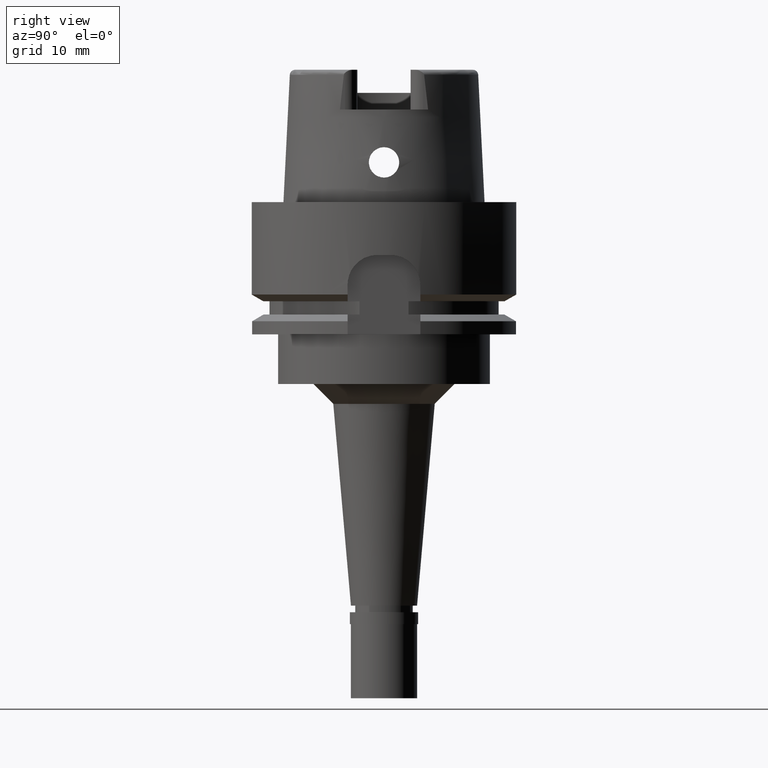
[diagram: clean part render]
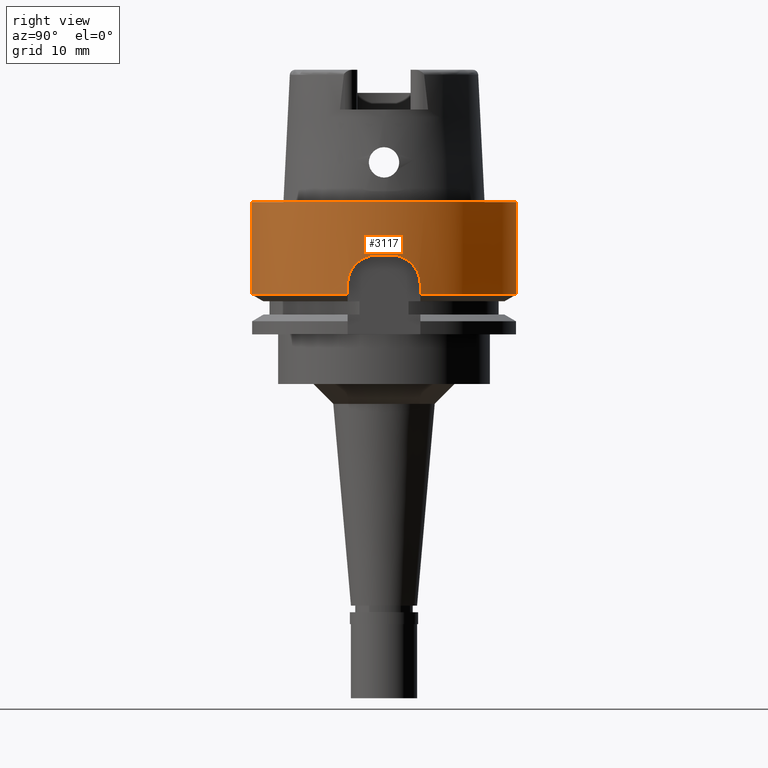
[diagram: same view with one face highlighted and labeled with its STEP entity id]
A machine part, right view. The second image highlights one B-rep face of the part: STEP entity #3117.
In plain terms, the highlighted cylindrical surface (partial cylindrical patch) has radius 20 mm, axis along (0, 0, -1).
Its self-contained STEP definition (entity closure, byte-faithful):
#55 = CARTESIAN_POINT ( 'NONE',  ( 19.55946601776717486, -4.174647431067589842, -9.310700270499427944 ) ) ;
#63 = EDGE_CURVE ( 'NONE', #1830, #4977, #2137, .T. ) ;
#95 = CARTESIAN_POINT ( 'NONE',  ( 0.0000000000000000000, 1.047199923064999921E-14, -13.97927405783999966 ) ) ;
#266 = CARTESIAN_POINT ( 'NONE',  ( 19.50142593039273109, 4.439542253083269330, -9.597059118783027643 ) ) ;
#269 = CARTESIAN_POINT ( 'NONE',  ( 19.81625301537057027, -2.704420886944092661, -8.335265361555848074 ) ) ;
#294 = CARTESIAN_POINT ( 'NONE',  ( 19.70286275662716236, -3.434780831020409320, -8.715480651281778179 ) ) ;
#314 = CARTESIAN_POINT ( 'NONE',  ( 19.52053442686839446, 4.353765221782037287, -9.499310411786693109 ) ) ;
#332 = ORIENTED_EDGE ( 'NONE', *, *, #885, .F. ) ;
#369 = CIRCLE ( 'NONE', #3373, 20.00000000000000000 ) ;
#371 = CARTESIAN_POINT ( 'NONE',  ( 19.29601910180648616, 5.260598097711366883, -11.04834435504875501 ) ) ;
#372 = CARTESIAN_POINT ( 'NONE',  ( 19.97498435543999662, -1.000000000000000000, -8.000000000000000000 ) ) ;
#373 = EDGE_LOOP ( 'NONE', ( #3908, #4962, #478, #2724, #829, #1973, #4865, #4225, #2936, #332 ) ) ;
#406 = EDGE_CURVE ( 'NONE', #1966, #4977, #2077, .T. ) ;
#425 = CARTESIAN_POINT ( 'NONE',  ( 19.22888452303000051, -5.500000000000000000, -12.50000000000000000 ) ) ;
#478 = ORIENTED_EDGE ( 'NONE', *, *, #4879, .F. ) ;
#574 = DIRECTION ( 'NONE',  ( 0.0000000000000000000, -1.000000000000000000, 0.0000000000000000000 ) ) ;
#692 = CARTESIAN_POINT ( 'NONE',  ( 19.79266068958626690, 2.872814982025818864, -8.408059249521329548 ) ) ;
#719 = CARTESIAN_POINT ( 'NONE',  ( 0.0000000000000000000, 20.00000000000000000, -13.97927405783999966 ) ) ;
#727 = CARTESIAN_POINT ( 'NONE',  ( 19.83222837323851806, -2.584740915281582119, -8.287963799882753335 ) ) ;
#746 = CARTESIAN_POINT ( 'NONE',  ( 19.32032418046354749, 5.169984398368204559, -10.80847615301117948 ) ) ;
#770 = CARTESIAN_POINT ( 'NONE',  ( 19.34380695557921115, 5.081862356183860285, -10.59253311257741359 ) ) ;
#789 = DIRECTION ( 'NONE',  ( -9.330906613146392706E-08, -3.262214250011141658E-07, -0.9999999999999423794 ) ) ;
#790 = CYLINDRICAL_SURFACE ( 'NONE', #2190, 20.00000000000000000 ) ;
#803 = CARTESIAN_POINT ( 'NONE',  ( 19.37871462058611272, -4.949342529047944694, -10.33909566511290734 ) ) ;
#804 = VERTEX_POINT ( 'NONE', #4328 ) ;
#829 = ORIENTED_EDGE ( 'NONE', *, *, #4588, .F. ) ;
#856 = CARTESIAN_POINT ( 'NONE',  ( 19.34832780428960675, -5.064939329112198685, -10.56870436403544034 ) ) ;
#885 = EDGE_CURVE ( 'NONE', #4275, #1830, #1179, .T. ) ;
#890 = CARTESIAN_POINT ( 'NONE',  ( 19.32817306023278547, -5.140566403617407687, -10.73759747573269330 ) ) ;
#991 = DIRECTION ( 'NONE',  ( 0.0000000000000000000, 0.0000000000000000000, 1.000000000000000000 ) ) ;
#992 = CARTESIAN_POINT ( 'NONE',  ( 19.32359924222965830, -5.157733724682836751, -10.77858382672700976 ) ) ;
#1043 = CARTESIAN_POINT ( 'NONE',  ( 0.0000000000000000000, -20.00000000000000000, -4.973799150320999175E-14 ) ) ;
#1126 = LINE ( 'NONE', #5173, #2505 ) ;
#1129 = CARTESIAN_POINT ( 'NONE',  ( 19.97498435543999662, 1.000000000000000000, -8.000000000000000000 ) ) ;
#1133 = CARTESIAN_POINT ( 'NONE',  ( 19.69218632689483428, -3.495406580191935397, -8.755277578796775373 ) ) ;
#1158 = CARTESIAN_POINT ( 'NONE',  ( 19.57622255506661801, 4.096717591862338637, -9.231638431951099122 ) ) ;
#1162 = CARTESIAN_POINT ( 'NONE',  ( 19.64434316029579719, -3.753364497397666533, -8.939880111753758740 ) ) ;
#1179 = B_SPLINE_CURVE_WITH_KNOTS ( 'NONE', 3,
 ( #3931, #2819, #1587, #5213, #1613, #2015, #2311, #727, #3167, #3542, #3645, #269, #1907, #1556, #5159, #1506, #4755, #3960, #294, #3567, #5184, #4806, #1532, #4777, #1133, #2770, #4381, #1162, #2798, #4961, #1639, #2123, #3747, #4909, #2626, #2922, #55, #2894, #2443, #3275, #4509, #803, #2464, #856, #4537, #2069, #890, #3025, #4881, #3668, #992, #2523, #1262, #425 ),
 .UNSPECIFIED., .F., .F.,
 ( 4, 2, 2, 1, 1, 1, 2, 2, 2, 2, 1, 1, 1, 1, 1, 2, 2, 2, 2, 2, 1, 1, 1, 2, 2, 2, 2, 2, 1, 1, 1, 2, 2, 4 ),
 ( 0.0000000000000000000, 0.1250000000006271095, 0.1875000000009407197, 0.2187500000010976220, 0.2343750000011760037, 0.2421875000012152501, 0.2460937500012349566, 0.2500000000012546630, 0.3125000000015718538, 0.3437500000017303936, 0.3593750000018097746, 0.3671875000018494650, 0.3710937500018691160, 0.3730468750018789414, 0.3740234375018838264, 0.3745117187518861024, 0.3750000000018883783, 0.4375000000017047475, 0.4687500000016132096, 0.4843750000015673574, 0.4921875000015444312, 0.4960937500015331625, 0.4980468750015275003, 0.4990234375015247803, 0.5000000000015220047, 0.6250000000011353141, 0.6875000000009421353, 0.7187500000008451018, 0.7343750000007961409, 0.7421875000007718270, 0.7460937500007596146, 0.7480468750007539525, 0.7500000000007481793, 1.000000000000000000 ),
 .UNSPECIFIED. ) ;
#1183 = CARTESIAN_POINT ( 'NONE',  ( 19.31936919709609413, 5.173565336899839551, -10.81733093384521283 ) ) ;
#1202 = FACE_OUTER_BOUND ( 'NONE', #373, .T. ) ;
#1262 = CARTESIAN_POINT ( 'NONE',  ( 19.22888452303000051, -5.499999999999998224, -11.94434606110780450 ) ) ;
#1384 = DIRECTION ( 'NONE',  ( 0.0000000000000000000, -1.000000000000000000, 0.0000000000000000000 ) ) ;
#1506 = CARTESIAN_POINT ( 'NONE',  ( 19.73895532437388667, -3.221284057041142734, -8.585652795198658538 ) ) ;
#1532 = CARTESIAN_POINT ( 'NONE',  ( 19.69294124567169746, -3.491151711780235978, -8.752445483751202460 ) ) ;
#1538 = DIRECTION ( 'NONE',  ( 0.0000000000000000000, 0.0000000000000000000, -1.000000000000000000 ) ) ;
#1552 = CARTESIAN_POINT ( 'NONE',  ( 19.26930964573412197, 5.358382645663338550, -11.37007128475910100 ) ) ;
#1556 = CARTESIAN_POINT ( 'NONE',  ( 19.78050042100976214, -2.957517143741742682, -8.445362508894744380 ) ) ;
#1558 = CARTESIAN_POINT ( 'NONE',  ( 0.0000000000000000000, 20.00000000000000000, -3.079018521626999621E-14 ) ) ;
#1559 = EDGE_CURVE ( 'NONE', #1871, #3012, #369, .T. ) ;
#1587 = CARTESIAN_POINT ( 'NONE',  ( 19.94128767625850074, -1.553696544724710193, -8.024613320675822337 ) ) ;
#1613 = CARTESIAN_POINT ( 'NONE',  ( 19.88640778754135852, -2.130037156350732985, -8.141558214531912085 ) ) ;
#1630 = LINE ( 'NONE', #2007, #4252 ) ;
#1639 = CARTESIAN_POINT ( 'NONE',  ( 19.59755329167247950, -3.991492605872019261, -9.137735594695872265 ) ) ;
#1727 = VECTOR ( 'NONE', #789, 1000.000000000000114 ) ;
#1735 = CARTESIAN_POINT ( 'NONE',  ( 19.22888452303000051, -5.499999999998999911, -13.97927405783999966 ) ) ;
#1830 = VERTEX_POINT ( 'NONE', #2614 ) ;
#1871 = VERTEX_POINT ( 'NONE', #1558 ) ;
#1907 = CARTESIAN_POINT ( 'NONE',  ( 19.79891483246287365, -2.831338609660753569, -8.387472549055360105 ) ) ;
#1933 = CARTESIAN_POINT ( 'NONE',  ( 19.54706758414558365, 4.232361528609957624, -9.369190671430152051 ) ) ;
#1957 = CARTESIAN_POINT ( 'NONE',  ( 19.28663469832159549, 5.295105913703959999, -11.15552064465399340 ) ) ;
#1966 = VERTEX_POINT ( 'NONE', #3621 ) ;
#1973 = ORIENTED_EDGE ( 'NONE', *, *, #1559, .T. ) ;
#1985 = CARTESIAN_POINT ( 'NONE',  ( 19.31465255680291904, 5.191230033022964818, -10.86163901159076772 ) ) ;
#2007 = CARTESIAN_POINT ( 'NONE',  ( 19.22888455231999671, 5.499999897597000142, -13.97927491597999961 ) ) ;
#2010 = CARTESIAN_POINT ( 'NONE',  ( 19.77784088565055853, 2.975054965791005035, -8.455373366385931178 ) ) ;
#2015 = CARTESIAN_POINT ( 'NONE',  ( 19.86155045042389489, -2.348188506590724423, -8.206034764496976663 ) ) ;
#2037 = CARTESIAN_POINT ( 'NONE',  ( 19.22888452303000051, 5.500000000000000000, -12.50000000000000000 ) ) ;
#2047 = CARTESIAN_POINT ( 'NONE',  ( 0.0000000000000000000, 1.525481285357999688E-14, -4.973799150320999175E-14 ) ) ;
#2069 = CARTESIAN_POINT ( 'NONE',  ( 19.33346370639365475, -5.120735699995619505, -10.69140906420976300 ) ) ;
#2077 = CIRCLE ( 'NONE', #2586, 20.00000000000000000 ) ;
#2123 = CARTESIAN_POINT ( 'NONE',  ( 19.58348406175287693, -4.060166917196702308, -9.200554451966914016 ) ) ;
#2137 = LINE ( 'NONE', #3760, #1727 ) ;
#2190 = AXIS2_PLACEMENT_3D ( 'NONE', #2432, #4053, #574 ) ;
#2247 = AXIS2_PLACEMENT_3D ( 'NONE', #3296, #4480, #2865 ) ;
#2251 = CARTESIAN_POINT ( 'NONE',  ( 0.0000000000000000000, 1.047199923064999921E-14, -13.97927405783999966 ) ) ;
#2309 = CARTESIAN_POINT ( 'NONE',  ( 19.94747734611184953, 1.549452080895394435, -8.000000000000000000 ) ) ;
#2311 = CARTESIAN_POINT ( 'NONE',  ( 19.84851072774393899, -2.457405216440189388, -8.241312961659874148 ) ) ;
#2385 = CARTESIAN_POINT ( 'NONE',  ( 19.73156136721900111, 3.271312546341104799, -8.612418166238757777 ) ) ;
#2409 = CARTESIAN_POINT ( 'NONE',  ( 19.48919467985870924, 4.493392015102250170, -9.662221682820394619 ) ) ;
#2432 = CARTESIAN_POINT ( 'NONE',  ( 0.0000000000000000000, 1.525481285357999688E-14, 24.56500000000000128 ) ) ;
#2443 = CARTESIAN_POINT ( 'NONE',  ( 19.50243034717146884, -4.441498029884987986, -9.577354834597434419 ) ) ;
#2464 = CARTESIAN_POINT ( 'NONE',  ( 19.35553694553402693, -5.037750810776712385, -10.51234513077794475 ) ) ;
#2482 = DIRECTION ( 'NONE',  ( -1.979970777584989435E-08, 6.922498390785961804E-08, 0.9999999999999973355 ) ) ;
#2505 = VECTOR ( 'NONE', #4321, 1000.000000000000000 ) ;
#2523 = CARTESIAN_POINT ( 'NONE',  ( 19.26029251281642019, -5.395656231037307293, -11.35498875609509284 ) ) ;
#2586 = AXIS2_PLACEMENT_3D ( 'NONE', #2251, #991, #1384 ) ;
#2614 = CARTESIAN_POINT ( 'NONE',  ( 19.22888452303000051, -5.500000000000000000, -12.50000000000000000 ) ) ;
#2626 = CARTESIAN_POINT ( 'NONE',  ( 19.56276028350696450, -4.159176365751750204, -9.295357038149926865 ) ) ;
#2724 = ORIENTED_EDGE ( 'NONE', *, *, #4983, .T. ) ;
#2766 = CARTESIAN_POINT ( 'NONE',  ( 19.22888452303000051, 5.500000000000000000, -12.22465747469364672 ) ) ;
#2770 = CARTESIAN_POINT ( 'NONE',  ( 19.69007030108068790, -3.507325168192505060, -8.763220307204319326 ) ) ;
#2795 = CARTESIAN_POINT ( 'NONE',  ( 19.30823085762336788, 5.215214264579218550, -10.92377104179822211 ) ) ;
#2798 = CARTESIAN_POINT ( 'NONE',  ( 19.63064394763237175, -3.824976937391296072, -8.995569033141055826 ) ) ;
#2815 = CARTESIAN_POINT ( 'NONE',  ( 19.37445306152446634, 4.968718896179900923, -10.35856978558746810 ) ) ;
#2819 = CARTESIAN_POINT ( 'NONE',  ( 19.96139497116242723, -1.271447738301229258, -8.000000000000001776 ) ) ;
#2837 = CARTESIAN_POINT ( 'NONE',  ( 19.45402416960585157, 4.645537953123496600, -9.856678750723689930 ) ) ;
#2865 = DIRECTION ( 'NONE',  ( 0.9987492177719088371, -0.04999999999999998890, 0.0000000000000000000 ) ) ;
#2894 = CARTESIAN_POINT ( 'NONE',  ( 19.55857315053915357, -4.178829359050190817, -9.314870145130013768 ) ) ;
#2918 = LINE ( 'NONE', #4562, #3354 ) ;
#2922 = CARTESIAN_POINT ( 'NONE',  ( 19.56078668876654092, -4.168450488733339121, -9.304543760803174024 ) ) ;
#2936 = ORIENTED_EDGE ( 'NONE', *, *, #63, .F. ) ;
#2986 = AXIS2_PLACEMENT_3D ( 'NONE', #95, #4207, #4232 ) ;
#3012 = VERTEX_POINT ( 'NONE', #1043 ) ;
#3025 = CARTESIAN_POINT ( 'NONE',  ( 19.32561251652135326, -5.150173324776464945, -10.76041730666092811 ) ) ;
#3117 = ADVANCED_FACE ( 'NONE', ( #1202 ), #790, .T. ) ;
#3164 = CARTESIAN_POINT ( 'NONE',  ( 19.59855040313290431, 3.987633760326811050, -9.131633675298168384 ) ) ;
#3167 = CARTESIAN_POINT ( 'NONE',  ( 19.82381985980777017, -2.648343888950674074, -8.312682143098305332 ) ) ;
#3195 = CARTESIAN_POINT ( 'NONE',  ( 19.31794236171047530, 5.178913504022619740, -10.83061647130366012 ) ) ;
#3275 = CARTESIAN_POINT ( 'NONE',  ( 19.45499076636762226, -4.644027424708560225, -9.843214420874701887 ) ) ;
#3296 = CARTESIAN_POINT ( 'NONE',  ( 0.0000000000000000000, 1.525481285357999688E-14, -8.000000000000000000 ) ) ;
#3354 = VECTOR ( 'NONE', #4929, 1000.000000000000000 ) ;
#3373 = AXIS2_PLACEMENT_3D ( 'NONE', #2047, #1538, #3626 ) ;
#3487 = CARTESIAN_POINT ( 'NONE',  ( 19.97498435543999662, 1.000000000000000000, -8.000000000000000000 ) ) ;
#3538 = CARTESIAN_POINT ( 'NONE',  ( 19.32093289487027121, 5.167700803223270967, -10.80286057460748950 ) ) ;
#3542 = CARTESIAN_POINT ( 'NONE',  ( 19.82015892487073927, -2.675583637691682171, -8.323576253928909097 ) ) ;
#3567 = CARTESIAN_POINT ( 'NONE',  ( 19.69754499802385439, -3.465100448351546625, -8.735233290140167028 ) ) ;
#3587 = CARTESIAN_POINT ( 'NONE',  ( 19.25968461651885733, 5.392910415947905989, -11.51336319933396801 ) ) ;
#3604 = VERTEX_POINT ( 'NONE', #3487 ) ;
#3621 = CARTESIAN_POINT ( 'NONE',  ( 0.0000000000000000000, -20.00000000000000000, -13.97927405783999966 ) ) ;
#3626 = DIRECTION ( 'NONE',  ( 0.0000000000000000000, 1.000000000000000000, 0.0000000000000000000 ) ) ;
#3641 = CARTESIAN_POINT ( 'NONE',  ( 19.80702582156760982, 2.771501254341000919, -8.363168820821488936 ) ) ;
#3645 = CARTESIAN_POINT ( 'NONE',  ( 19.81770557128518462, -2.693738785039518024, -8.330906002295053625 ) ) ;
#3668 = CARTESIAN_POINT ( 'NONE',  ( 19.32381787218635338, -5.156912517073622304, -10.77660492449496132 ) ) ;
#3714 = EDGE_CURVE ( 'NONE', #4451, #3604, #3729, .T. ) ;
#3729 = B_SPLINE_CURVE_WITH_KNOTS ( 'NONE', 3,
 ( #3983, #2766, #4828, #3587, #1552, #1957, #371, #2795, #1985, #3195, #1183, #746, #3538, #770, #2815, #4801, #2837, #2409, #266, #314, #4376, #4751, #1933, #5179, #4452, #1158, #3164, #4404, #4033, #4427, #2385, #4774, #2010, #692, #4008, #3641, #5261, #2309, #1129 ),
 .UNSPECIFIED., .F., .F.,
 ( 4, 2, 2, 1, 1, 1, 1, 2, 2, 2, 2, 2, 1, 1, 2, 2, 2, 2, 2, 1, 2, 2, 4 ),
 ( 0.0000000000000000000, 0.1250000000000140166, 0.1875000000000213718, 0.2187500000000249800, 0.2343750000000265621, 0.2421875000000272837, 0.2460937500000277833, 0.2480468750000279776, 0.2500000000000281442, 0.3750000000000233702, 0.4375000000000211497, 0.4687500000000202616, 0.4843750000000195399, 0.4921875000000194289, 0.4960937500000194289, 0.5000000000000194289, 0.5625000000000174305, 0.6250000000000153211, 0.6875000000000132117, 0.7187500000000122125, 0.7343750000000116573, 0.7500000000000109912, 1.000000000000000000 ),
 .UNSPECIFIED. ) ;
#3747 = CARTESIAN_POINT ( 'NONE',  ( 19.57621227051668100, -4.095335981776966783, -9.233376359409128042 ) ) ;
#3760 = CARTESIAN_POINT ( 'NONE',  ( 19.22888452303000051, -5.500000000000000000, -12.50000000000000000 ) ) ;
#3774 = CIRCLE ( 'NONE', #2247, 20.00000000000000355 ) ;
#3789 = EDGE_CURVE ( 'NONE', #3012, #1966, #2918, .T. ) ;
#3908 = ORIENTED_EDGE ( 'NONE', *, *, #3945, .T. ) ;
#3931 = CARTESIAN_POINT ( 'NONE',  ( 19.97498435543999662, -1.000000000000000000, -8.000000000000000000 ) ) ;
#3945 = EDGE_CURVE ( 'NONE', #4275, #3604, #3774, .T. ) ;
#3960 = CARTESIAN_POINT ( 'NONE',  ( 19.71332632635408544, -3.374393332477201746, -8.677022816151543694 ) ) ;
#3983 = CARTESIAN_POINT ( 'NONE',  ( 19.22888452303000051, 5.500000000000000000, -12.50000000000000000 ) ) ;
#4008 = CARTESIAN_POINT ( 'NONE',  ( 19.80244722007547153, 2.804145672546970225, -8.377322053014763625 ) ) ;
#4033 = CARTESIAN_POINT ( 'NONE',  ( 19.66574843538842998, 3.640817669629786923, -8.853413500725553220 ) ) ;
#4053 = DIRECTION ( 'NONE',  ( 0.0000000000000000000, 0.0000000000000000000, -1.000000000000000000 ) ) ;
#4207 = DIRECTION ( 'NONE',  ( 0.0000000000000000000, 0.0000000000000000000, 1.000000000000000000 ) ) ;
#4225 = ORIENTED_EDGE ( 'NONE', *, *, #406, .T. ) ;
#4232 = DIRECTION ( 'NONE',  ( 0.9614442261514726251, 0.2749999999999924727, 0.0000000000000000000 ) ) ;
#4252 = VECTOR ( 'NONE', #2482, 1000.000000000000227 ) ;
#4275 = VERTEX_POINT ( 'NONE', #372 ) ;
#4321 = DIRECTION ( 'NONE',  ( 0.0000000000000000000, -4.574547001069000145E-14, -1.000000000000000000 ) ) ;
#4328 = CARTESIAN_POINT ( 'NONE',  ( 19.22888455231999671, 5.499999897597000142, -13.97927491597999961 ) ) ;
#4376 = CARTESIAN_POINT ( 'NONE',  ( 19.53027908027488735, 4.309626506875561702, -9.450435772416618363 ) ) ;
#4381 = CARTESIAN_POINT ( 'NONE',  ( 19.67785115744198521, -3.575650279269555476, -8.807046664827172577 ) ) ;
#4404 = CARTESIAN_POINT ( 'NONE',  ( 19.64322700995230520, 3.760156515080752548, -8.942840572101511398 ) ) ;
#4427 = CARTESIAN_POINT ( 'NONE',  ( 19.71012153021548841, 3.397762175239445348, -8.689193312183027373 ) ) ;
#4451 = VERTEX_POINT ( 'NONE', #2037 ) ;
#4452 = CARTESIAN_POINT ( 'NONE',  ( 19.55251032529857014, 4.207111571716469101, -9.343337093207152222 ) ) ;
#4480 = DIRECTION ( 'NONE',  ( 0.0000000000000000000, 0.0000000000000000000, 1.000000000000000000 ) ) ;
#4509 = CARTESIAN_POINT ( 'NONE',  ( 19.39623340571264265, -4.881279890942718858, -10.21799917188167051 ) ) ;
#4537 = CARTESIAN_POINT ( 'NONE',  ( 19.33828921808240153, -5.102649160092395775, -10.65089791658008345 ) ) ;
#4562 = CARTESIAN_POINT ( 'NONE',  ( 0.0000000000000000000, -20.00000000000000000, -3.079018521626999621E-14 ) ) ;
#4588 = EDGE_CURVE ( 'NONE', #1871, #4703, #1126, .T. ) ;
#4703 = VERTEX_POINT ( 'NONE', #719 ) ;
#4751 = CARTESIAN_POINT ( 'NONE',  ( 19.54198105162760513, 4.255882633077031407, -9.393536465144112668 ) ) ;
#4755 = CARTESIAN_POINT ( 'NONE',  ( 19.72200033329762192, -3.323108481413076465, -8.645817699039534787 ) ) ;
#4774 = CARTESIAN_POINT ( 'NONE',  ( 19.76260105710921877, 3.074924970397655777, -8.506226763252636047 ) ) ;
#4777 = CARTESIAN_POINT ( 'NONE',  ( 19.69255577653849443, -3.493325089397369521, -8.753891125188173916 ) ) ;
#4801 = CARTESIAN_POINT ( 'NONE',  ( 19.43260815123626628, 4.734422932988243460, -9.984905843194917807 ) ) ;
#4806 = CARTESIAN_POINT ( 'NONE',  ( 19.69351906556017084, -3.487892151937508789, -8.750279404317454990 ) ) ;
#4828 = CARTESIAN_POINT ( 'NONE',  ( 19.23658454640221294, 5.474660854085302120, -11.94154979021848106 ) ) ;
#4865 = ORIENTED_EDGE ( 'NONE', *, *, #3789, .T. ) ;
#4879 = EDGE_CURVE ( 'NONE', #804, #4451, #1630, .T. ) ;
#4881 = CARTESIAN_POINT ( 'NONE',  ( 19.32453330765266841, -5.154225458029919160, -10.77013783649260681 ) ) ;
#4909 = CARTESIAN_POINT ( 'NONE',  ( 19.56731345559081348, -4.137688151816436566, -9.274255797007146640 ) ) ;
#4929 = DIRECTION ( 'NONE',  ( 0.0000000000000000000, 4.549132851063000272E-14, -1.000000000000000000 ) ) ;
#4961 = CARTESIAN_POINT ( 'NONE',  ( 19.60630030821519654, -3.947932665987302858, -9.099621231190102577 ) ) ;
#4962 = ORIENTED_EDGE ( 'NONE', *, *, #3714, .F. ) ;
#4977 = VERTEX_POINT ( 'NONE', #1735 ) ;
#4983 = EDGE_CURVE ( 'NONE', #804, #4703, #5274, .T. ) ;
#5159 = CARTESIAN_POINT ( 'NONE',  ( 19.74973462134366642, -3.154397349898488745, -8.548536765091929723 ) ) ;
#5173 = CARTESIAN_POINT ( 'NONE',  ( 0.0000000000000000000, 20.00000000000000000, -3.079018521626999621E-14 ) ) ;
#5179 = CARTESIAN_POINT ( 'NONE',  ( 19.55047447292162843, 4.216571673568295431, -9.352970484362158388 ) ) ;
#5184 = CARTESIAN_POINT ( 'NONE',  ( 19.69486462528722370, -3.480290084617866597, -8.745241877269334552 ) ) ;
#5213 = CARTESIAN_POINT ( 'NONE',  ( 19.90134986796308425, -1.984987916222876736, -8.106685163436042174 ) ) ;
#5261 = CARTESIAN_POINT ( 'NONE',  ( 19.89318047508611897, 2.146238498647575987, -8.101944124052639751 ) ) ;
#5274 = CIRCLE ( 'NONE', #2986, 20.00000000000000355 ) ;